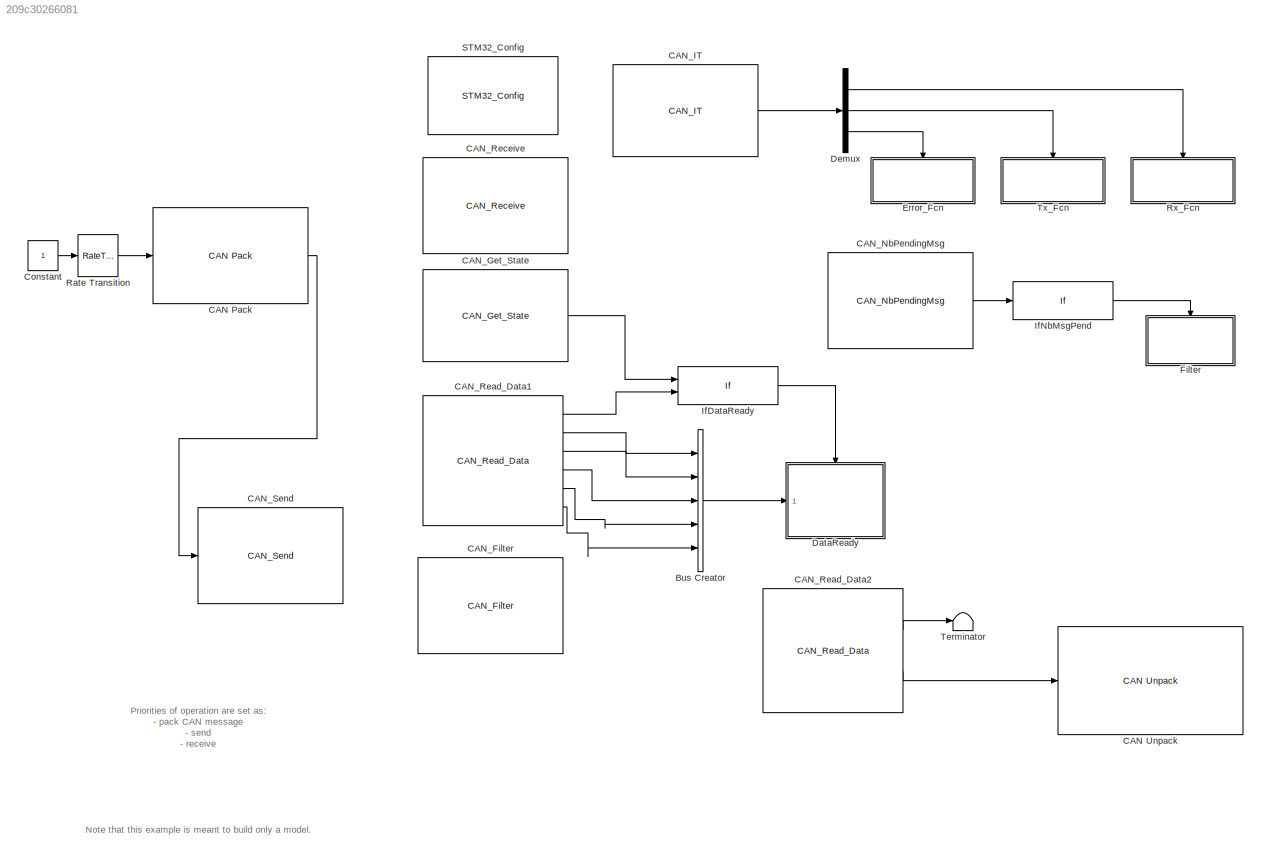
MODEL slx_209c30266081
KIND model
CONFIG AbsTol = auto
CONFIG EnableMultiTasking = on
CONFIG FixedStep = auto
CONFIG MaxStep = auto
CONFIG MinStep = auto
CONFIG RelTol = 1e-3
CONFIG SampleTimeConstraint = Unconstrained
CONFIG Solver = FixedStepDiscrete
CONFIG SolverName = FixedStepDiscrete
CONFIG StartTime = 0.0
CONFIG StopTime = 10.0
BLOCK [BusCreator] Bus Creator
  DisplayOption = bar
  InheritFromInputs = on
  Inputs = 5
  Ports = [5, 1]
BLOCK [Reference] CAN Pack  REF=canmsglib/CAN Pack
  AttributesFormatString = Priority=%<Priority>
  Ports = [1, 1]
  Priority = 1
  SourceBlock = canmsglib/CAN Pack
  SourceProductBaseCode = VN
  SourceProductName = Vehicle Network Toolbox
  SourceType = CAN Pack
BLOCK [Reference] CAN Unpack  REF=canmsglib/CAN Unpack
  Ports = [1, 7]
  SourceBlock = canmsglib/CAN Unpack
  SourceProductBaseCode = VN
  SourceProductName = Vehicle Network Toolbox
  SourceType = CAN Unpack
BLOCK [Reference] CAN_Filter  REF=CAN_Lib/CAN_Filter
  Ports = []
  SourceBlock = CAN_Lib/CAN_Filter
  SourceProductName = Target Support Package - STM32 Adapter
  SourceType = CAN_Filter
BLOCK [Reference] CAN_Get_State  REF=CAN_Lib/CAN_Get_State
  Ports = [0, 1]
  SourceBlock = CAN_Lib/CAN_Get_State
  SourceProductName = Target Support Package - STM32 Adapter
  SourceType = CAN_Get_State
BLOCK [Reference] CAN_IT  REF=CAN_Lib/CAN_IT
  Ports = [0, 1]
  SourceBlock = CAN_Lib/CAN_IT
  SourceProductName = Target Support Package - STM32 Adapter
  SourceType = CAN_IT
BLOCK [Reference] CAN_NbPendingMsg  REF=CAN_Lib/CAN_NbPendingMsg
  Ports = [0, 1]
  SourceBlock = CAN_Lib/CAN_NbPendingMsg
  SourceProductName = Target Support Package - STM32 Adapter
  SourceType = CAN_NbPendingMsg
BLOCK [Reference] CAN_Read_Data1  REF=CAN_Lib/CAN_Read_Data
  Ports = [0, 6]
  SourceBlock = CAN_Lib/CAN_Read_Data
  SourceProductName = Target Support Package - STM32 Adapter
  SourceType = CAN_Read_Data
BLOCK [Reference] CAN_Read_Data2  REF=CAN_Lib/CAN_Read_Data
  Ports = [0, 2]
  SourceBlock = CAN_Lib/CAN_Read_Data
  SourceProductName = Target Support Package - STM32 Adapter
  SourceType = CAN_Read_Data
BLOCK [Reference] CAN_Receive  REF=CAN_Lib/CAN_Receive
  AttributesFormatString = Priority=%<Priority>
  Ports = []
  Priority = 2
  SourceBlock = CAN_Lib/CAN_Receive
  SourceProductName = Target Support Package - STM32 Adapter
  SourceType = CAN_Receive
BLOCK [Reference] CAN_Send  REF=CAN_Lib/CAN_Send
  AttributesFormatString = Priority=%<Priority>
  Ports = [1]
  Priority = 2
  SourceBlock = CAN_Lib/CAN_Send
  SourceProductName = Target Support Package - STM32 Adapter
  SourceType = CAN_Send
BLOCK [Constant] Constant
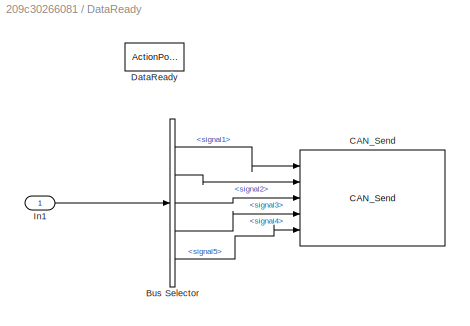
BLOCK [SubSystem] DataReady
  Ports = [1, 0, 0, 0, 0, 0, 0, 1]
  RequestExecContextInheritance = off
  TreatAsAtomicUnit = on
BLOCK [BusSelector] DataReady/Bus Selector
  OutputAsBus = off
  OutputSignals = signal1,signal2,signal3,signal4,signal5
  Ports = [1, 5]
BLOCK [Reference] DataReady/CAN_Send  REF=CAN_Lib/CAN_Send
  Ports = [5]
  SourceBlock = CAN_Lib/CAN_Send
  SourceProductName = Target Support Package - STM32 Adapter
  SourceType = CAN_Send
BLOCK [ActionPort] DataReady/DataReady
  ActionType = then
BLOCK [Inport] DataReady/In1
  IconDisplay = Port number
BLOCK [Demux] Demux
  DisplayOption = bar
  Outputs = 3
  Ports = [1, 3]
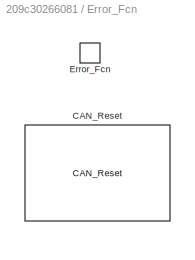
BLOCK [SubSystem] Error_Fcn
  Ports = [0, 0, 0, 1]
  RequestExecContextInheritance = off
  TreatAsAtomicUnit = on
BLOCK [Reference] Error_Fcn/CAN_Reset  REF=CAN_Lib/CAN_Reset
  Ports = []
  SourceBlock = CAN_Lib/CAN_Reset
  SourceProductName = Target Support Package - STM32 Adapter
  SourceType = CAN_Reset
BLOCK [TriggerPort] Error_Fcn/Error_Fcn
  Ports = []
  StatesWhenEnabling = held
  TriggerType = function-call
  VariantControl = Variant
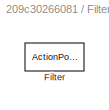
BLOCK [SubSystem] Filter
  Ports = [0, 0, 0, 0, 0, 0, 0, 1]
  RequestExecContextInheritance = off
  TreatAsAtomicUnit = on
BLOCK [ActionPort] Filter/Filter
  ActionType = then
BLOCK [If] IfDataReady
  IfExpression = u1 == 1  & u2 >0
  NumInputs = 2
  Ports = [2, 1]
  ShowElse = off
BLOCK [If] IfNbMsgPend
  Ports = [1, 1]
  ShowElse = off
BLOCK [RateTransition] Rate Transition
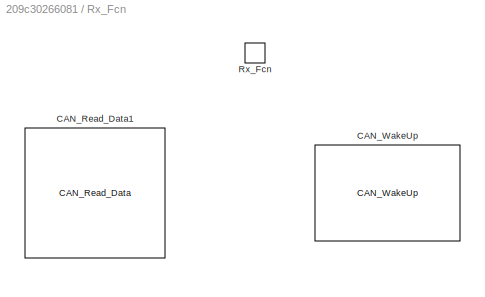
BLOCK [SubSystem] Rx_Fcn
  Ports = [0, 0, 0, 1]
  RequestExecContextInheritance = off
  TreatAsAtomicUnit = on
BLOCK [Reference] Rx_Fcn/CAN_Read_Data1  REF=CAN_Lib/CAN_Read_Data
  Ports = [0, 6]
  SourceBlock = CAN_Lib/CAN_Read_Data
  SourceProductName = Target Support Package - STM32 Adapter
  SourceType = CAN_Read_Data
BLOCK [Reference] Rx_Fcn/CAN_WakeUp  REF=CAN_Lib/CAN_WakeUp
  Ports = []
  SourceBlock = CAN_Lib/CAN_WakeUp
  SourceProductName = Target Support Package - STM32 Adapter
  SourceType = CAN_WakeUp
BLOCK [TriggerPort] Rx_Fcn/Rx_Fcn
  Ports = []
  StatesWhenEnabling = held
  TriggerType = function-call
  VariantControl = Variant
BLOCK [Reference] STM32_Config  REF=STM32_Config_Lib/STM32_Config
  Ports = []
  Priority = 0
  SourceBlock = STM32_Config_Lib/STM32_Config
  SourceProductName = Target Support Package - STM32 Adapter
  SourceType = STM32_Config
BLOCK [Terminator] Terminator
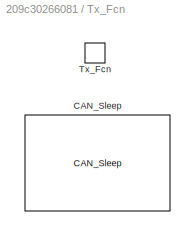
BLOCK [SubSystem] Tx_Fcn
  Ports = [0, 0, 0, 1]
  RequestExecContextInheritance = off
  TreatAsAtomicUnit = on
BLOCK [Reference] Tx_Fcn/CAN_Sleep  REF=CAN_Lib/CAN_Sleep
  Ports = []
  SourceBlock = CAN_Lib/CAN_Sleep
  SourceProductName = Target Support Package - STM32 Adapter
  SourceType = CAN_Sleep
BLOCK [TriggerPort] Tx_Fcn/Tx_Fcn
  Ports = []
  StatesWhenEnabling = held
  TriggerType = function-call
  VariantControl = Variant
ANNOTATION (root): Priorities of operation are set as: - pack CAN message - send - receive
ANNOTATION (root): Note that this example is meant to build only a model.
LINE Bus Creator:1 -> DataReady:1
LINE CAN Pack:1 -> CAN_Send:1
LINE CAN_Get_State:1 -> IfDataReady:1
LINE CAN_IT:1 -> Demux:1
LINE CAN_NbPendingMsg:1 -> IfNbMsgPend:1
LINE CAN_Read_Data1:1 -> IfDataReady:2
LINE CAN_Read_Data1:2 -> Bus Creator:1
LINE CAN_Read_Data1:3 -> Bus Creator:2
LINE CAN_Read_Data1:4 -> Bus Creator:3
LINE CAN_Read_Data1:5 -> Bus Creator:4
LINE CAN_Read_Data1:6 -> Bus Creator:5
LINE CAN_Read_Data2:1 -> Terminator:1
LINE CAN_Read_Data2:2 -> CAN Unpack:1
LINE Constant:1 -> Rate Transition:1
LINE DataReady/Bus Selector:1 -> DataReady/CAN_Send:1
LINE DataReady/Bus Selector:2 -> DataReady/CAN_Send:2
LINE DataReady/Bus Selector:3 -> DataReady/CAN_Send:3
LINE DataReady/Bus Selector:4 -> DataReady/CAN_Send:4
LINE DataReady/Bus Selector:5 -> DataReady/CAN_Send:5
LINE DataReady/In1:1 -> DataReady/Bus Selector:1
LINE Demux:1 -> Rx_Fcn:trigger
LINE Demux:2 -> Tx_Fcn:trigger
LINE Demux:3 -> Error_Fcn:trigger
LINE IfDataReady:1 -> DataReady:ifaction
LINE IfNbMsgPend:1 -> Filter:ifaction
LINE Rate Transition:1 -> CAN Pack:1
